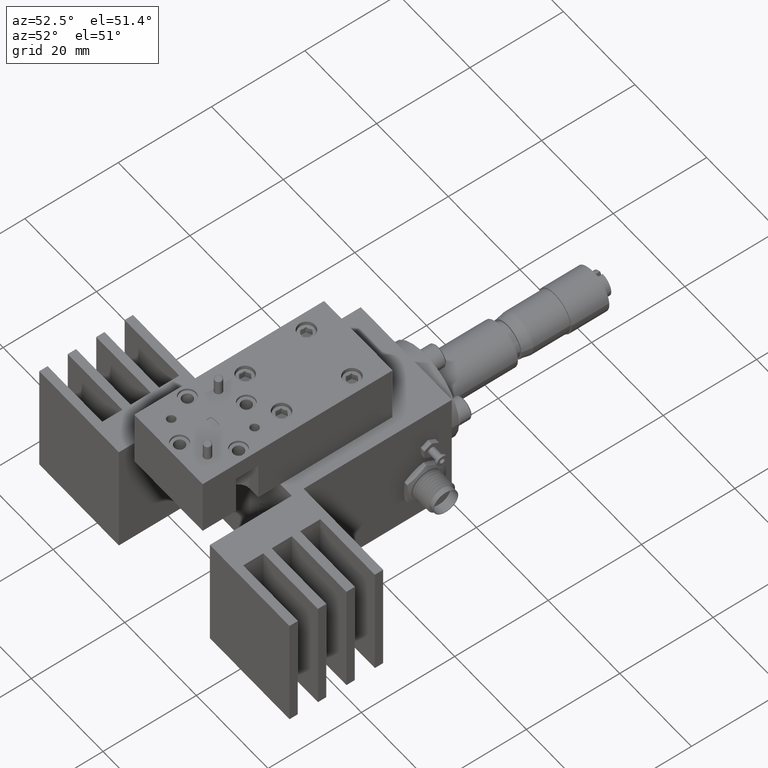
[diagram: clean part render]
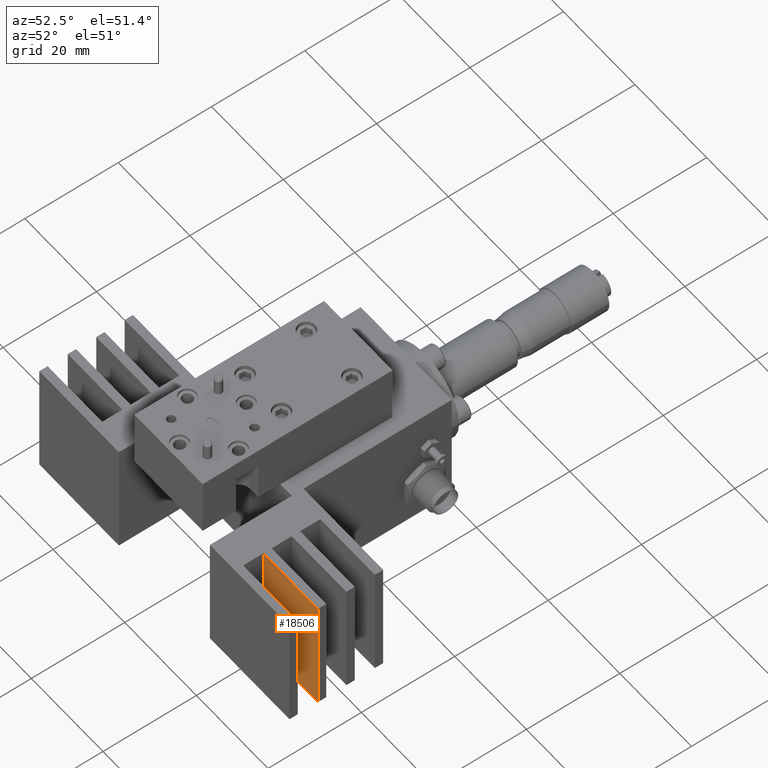
[diagram: same view with one face highlighted and labeled with its STEP entity id]
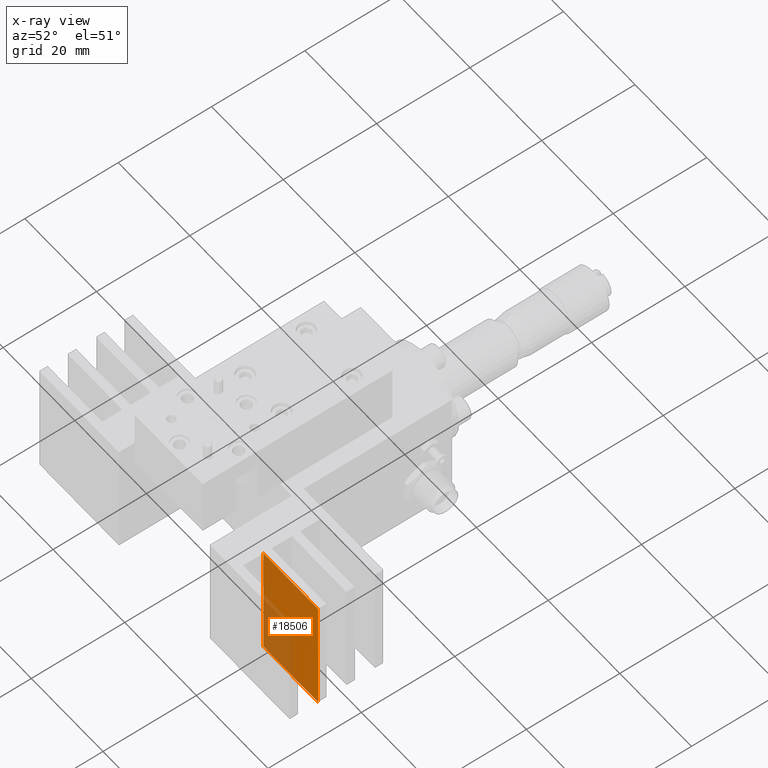
[diagram: x-ray of the same camera — body ghosted, the highlighted face saturated]
A machine part, auxiliary view. The second image highlights one B-rep face of the part: STEP entity #18506.
The next image is the same camera in x-ray: the body ghosted, the highlighted face saturated — about 30% of this face is hidden behind the body in this view.
In plain terms, the highlighted planar face has unit normal (0, 1, -0).
Its self-contained STEP definition (entity closure, byte-faithful):
#389 = VERTEX_POINT ( 'NONE', #27413 ) ;
#728 = EDGE_CURVE ( 'NONE', #37366, #25575, #16348, .T. ) ;
#2262 = ORIENTED_EDGE ( 'NONE', *, *, #16914, .F. ) ;
#2442 = LINE ( 'NONE', #23770, #20311 ) ;
#3238 = CARTESIAN_POINT ( 'NONE',  ( 1.375000000000000000, -1.000000000000000000, -0.5000000000000002200 ) ) ;
#4085 = PLANE ( 'NONE',  #24471 ) ;
#7156 = EDGE_LOOP ( 'NONE', ( #23918, #11919, #2262, #13120 ) ) ;
#11919 = ORIENTED_EDGE ( 'NONE', *, *, #728, .F. ) ;
#13120 = ORIENTED_EDGE ( 'NONE', *, *, #38719, .T. ) ;
#13387 = DIRECTION ( 'NONE',  ( 0.0000000000000000000, 1.000000000000000000, -0.0000000000000000000 ) ) ;
#15149 = EDGE_CURVE ( 'NONE', #33812, #25575, #27169, .T. ) ;
#16348 = LINE ( 'NONE', #18976, #36536 ) ;
#16379 = DIRECTION ( 'NONE',  ( 0.0000000000000000000, 0.0000000000000000000, 1.000000000000000000 ) ) ;
#16914 = EDGE_CURVE ( 'NONE', #389, #37366, #38833, .T. ) ;
#18506 = ADVANCED_FACE ( 'NONE', ( #30276 ), #4085, .F. ) ;
#18976 = CARTESIAN_POINT ( 'NONE',  ( 1.375000000000000000, -1.000000000000000000, 0.4999999999999997800 ) ) ;
#19610 = VECTOR ( 'NONE', #25552, 39.37007874015748100 ) ;
#20311 = VECTOR ( 'NONE', #35455, 39.37007874015748100 ) ;
#23770 = CARTESIAN_POINT ( 'NONE',  ( 0.7750000000000000200, -1.000000000000000000, 0.4999999999999997800 ) ) ;
#23918 = ORIENTED_EDGE ( 'NONE', *, *, #15149, .T. ) ;
#24471 = AXIS2_PLACEMENT_3D ( 'NONE', #28043, #13387, #16379 ) ;
#25552 = DIRECTION ( 'NONE',  ( 1.000000000000000000, -0.0000000000000000000, -0.0000000000000000000 ) ) ;
#25575 = VERTEX_POINT ( 'NONE', #3238 ) ;
#27169 = LINE ( 'NONE', #30687, #28101 ) ;
#27413 = CARTESIAN_POINT ( 'NONE',  ( 0.7750000000000000200, -1.000000000000000000, 0.4999999999999997800 ) ) ;
#27528 = DIRECTION ( 'NONE',  ( 1.000000000000000000, -0.0000000000000000000, -0.0000000000000000000 ) ) ;
#28043 = CARTESIAN_POINT ( 'NONE',  ( 1.375000000000000000, -1.000000000000000000, 0.4999999999999997800 ) ) ;
#28101 = VECTOR ( 'NONE', #27528, 39.37007874015748100 ) ;
#30276 = FACE_OUTER_BOUND ( 'NONE', #7156, .T. ) ;
#30552 = CARTESIAN_POINT ( 'NONE',  ( 1.375000000000000000, -1.000000000000000000, 0.4999999999999997800 ) ) ;
#30687 = CARTESIAN_POINT ( 'NONE',  ( 1.375000000000000000, -1.000000000000000000, -0.5000000000000002200 ) ) ;
#33812 = VERTEX_POINT ( 'NONE', #34541 ) ;
#34320 = DIRECTION ( 'NONE',  ( -0.0000000000000000000, -0.0000000000000000000, -1.000000000000000000 ) ) ;
#34541 = CARTESIAN_POINT ( 'NONE',  ( 0.7750000000000000200, -1.000000000000000000, -0.5000000000000002200 ) ) ;
#34743 = CARTESIAN_POINT ( 'NONE',  ( 1.375000000000000000, -1.000000000000000000, 0.4999999999999997800 ) ) ;
#35455 = DIRECTION ( 'NONE',  ( -0.0000000000000000000, -0.0000000000000000000, -1.000000000000000000 ) ) ;
#36536 = VECTOR ( 'NONE', #34320, 39.37007874015748100 ) ;
#37366 = VERTEX_POINT ( 'NONE', #30552 ) ;
#38719 = EDGE_CURVE ( 'NONE', #389, #33812, #2442, .T. ) ;
#38833 = LINE ( 'NONE', #34743, #19610 ) ;